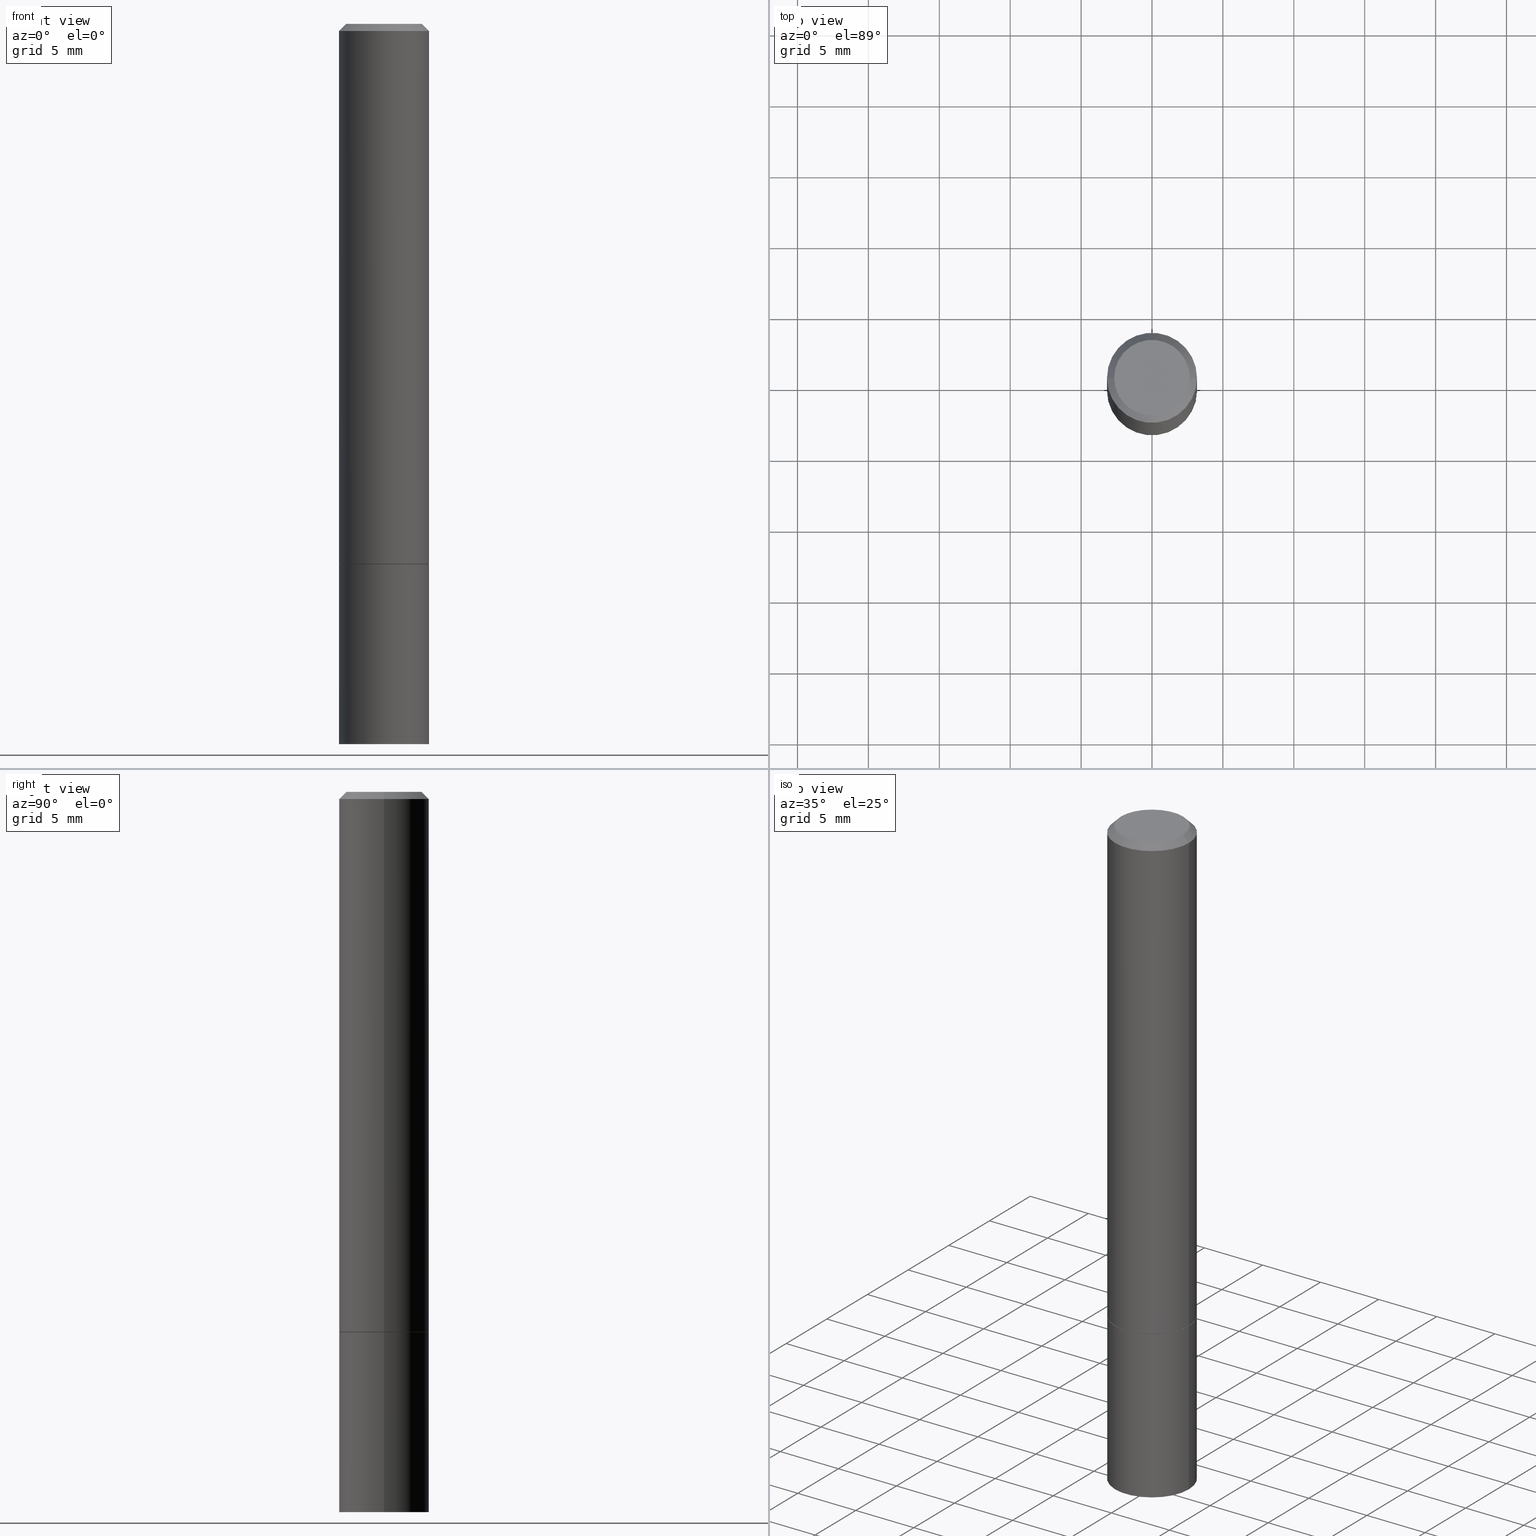
[diagram: canonical four-view strip — front | top / right | iso, engineering-drawing reading convention]
A machine part, canonical four-view strip (front | top / right | iso — engineering-drawing reading convention). The complete STEP part file that produces these views, byte-faithful:
ISO-10303-21;
HEADER;
FILE_DESCRIPTION (( 'STEP AP203' ),
    '1' );
FILE_NAME ('31713.STEP',
    '2024-02-27T13:15:38',
    ( '' ),
    ( '' ),
    'SwSTEP 2.0',
    'SolidWorks 2023',
    '' );
FILE_SCHEMA (( 'CONFIG_CONTROL_DESIGN' ));
ENDSEC;

DATA;
#1 = ORGANIZATION ( 'UNSPECIFIED', 'UNSPECIFIED', '' ) ;
#2 = DIRECTION ( 'NONE',  ( 0.000000000000000000, 0.000000000000000000, 1.000000000000000000 ) ) ;
#3 = CARTESIAN_POINT ( 'NONE',  ( -0.1249999999999998335, 8.030407079339191532E-16, -0.02000000000000002470 ) ) ;
#4 = PRODUCT_DEFINITION ( 'UNKNOWN', '', #302, #315 ) ;
#5 = DIRECTION ( 'NONE',  ( 1.000000000000000000, -6.982962677686270655E-15, 0.000000000000000000 ) ) ;
#6 = AXIS2_PLACEMENT_3D ( 'NONE', #290, #231, #134 ) ;
#7 = DIRECTION ( 'NONE',  ( -2.445468806185136597E-29, 3.491481338843145583E-15, 1.000000000000000000 ) ) ;
#8 =( LENGTH_UNIT ( ) NAMED_UNIT ( * ) SI_UNIT ( $, .METRE. ) );
#9 = LINE ( 'NONE', #201, #131 ) ;
#10 = VECTOR ( 'NONE', #197, 39.37007874015748143 ) ;
#11 = DIRECTION ( 'NONE',  ( -2.445468806185136597E-29, 3.491481338843145583E-15, 1.000000000000000000 ) ) ;
#12 = FACE_OUTER_BOUND ( 'NONE', #40, .T. ) ;
#13 = PLANE ( 'NONE',  #358 ) ;
#14 = ORIENTED_EDGE ( 'NONE', *, *, #109, .F. ) ;
#15 = ORIENTED_EDGE ( 'NONE', *, *, #190, .T. ) ;
#16 = EDGE_LOOP ( 'NONE', ( #34, #14 ) ) ;
#17 = DIRECTION ( 'NONE',  ( -2.445468806185136597E-29, 3.491481338843145583E-15, 1.000000000000000000 ) ) ;
#18 = ADVANCED_FACE ( 'NONE', ( #12 ), #255, .T. ) ;
#19 = ORIENTED_EDGE ( 'NONE', *, *, #233, .F. ) ;
#20 = CARTESIAN_POINT ( 'NONE',  ( 4.890937612370279289E-31, -6.982962677686299005E-17, -0.02000000000000002470 ) ) ;
#21 = EDGE_CURVE ( 'NONE', #268, #236, #267, .T. ) ;
#22 = PERSON_AND_ORGANIZATION ( #147, #1 ) ;
#23 = EDGE_CURVE ( 'NONE', #264, #149, #308, .T. ) ;
#24 = ADVANCED_FACE ( 'NONE', ( #133 ), #283, .F. ) ;
#25 = LOCAL_TIME ( 8, 15, 38.00000000000000000, #42 ) ;
#26 = FACE_OUTER_BOUND ( 'NONE', #60, .T. ) ;
#27 = EDGE_CURVE ( 'NONE', #236, #264, #181, .T. ) ;
#28 = VECTOR ( 'NONE', #55, 39.37007874015748143 ) ;
#29 = LENGTH_MEASURE_WITH_UNIT ( LENGTH_MEASURE( 0.02539999999999999897 ), #8 );
#30 = LINE ( 'NONE', #253, #343 ) ;
#31 = DIRECTION ( 'NONE',  ( 1.000000000000000000, -6.982962677686266711E-15, 0.000000000000000000 ) ) ;
#32 = CARTESIAN_POINT ( 'NONE',  ( 0.1250000000000000000, -7.855833012397075293E-15, -2.000000000000000000 ) ) ;
#33 = ADVANCED_FACE ( 'NONE', ( #237 ), #258, .T. ) ;
#34 = ORIENTED_EDGE ( 'NONE', *, *, #250, .F. ) ;
#35 = AXIS2_PLACEMENT_3D ( 'NONE', #338, #123, #341 ) ;
#36 = ORIENTED_EDGE ( 'NONE', *, *, #190, .F. ) ;
#37 = CARTESIAN_POINT ( 'NONE',  ( -0.1249999999999999167, 8.881784197001246407E-16, -6.148668862818628023E-30 ) ) ;
#38 = ORIENTED_EDGE ( 'NONE', *, *, #252, .F. ) ;
#39 = CARTESIAN_POINT ( 'NONE',  ( 8.728703347108198236E-16, 0.1249999999999947542, -1.500000000000000444 ) ) ;
#40 = EDGE_LOOP ( 'NONE', ( #183, #328, #364, #87 ) ) ;
#41 = DIRECTION ( 'NONE',  ( 1.000000000000000000, -6.982962677686270655E-15, 0.000000000000000000 ) ) ;
#42 = COORDINATED_UNIVERSAL_TIME_OFFSET ( 5, 0, .BEHIND. ) ;
#43 = DIRECTION ( 'NONE',  ( 1.000000000000000000, -6.982962677686270655E-15, 0.000000000000000000 ) ) ;
#44 = CARTESIAN_POINT ( 'NONE',  ( 3.665757740471518732E-29, -5.233730526925875170E-15, -1.498999999999999666 ) ) ;
#45 = EDGE_CURVE ( 'NONE', #299, #268, #291, .T. ) ;
#46 = DIRECTION ( 'NONE',  ( 2.438088387897960049E-29, -3.491481338843145188E-15, -1.000000000000000000 ) ) ;
#47 = CARTESIAN_POINT ( 'NONE',  ( -0.1250000000000000000, -5.221913923275378650E-15, -2.000000000000000000 ) ) ;
#48 = PERSON_AND_ORGANIZATION ( #147, #1 ) ;
#49 = AXIS2_PLACEMENT_3D ( 'NONE', #281, #7, #228 ) ;
#50 = CIRCLE ( 'NONE', #49, 0.1049999999999998573 ) ;
#51 = PRODUCT ( '31713', '31713', '', ( #339 ) ) ;
#52 = DIRECTION ( 'NONE',  ( -2.445468806185136597E-29, 3.491481338843145583E-15, 1.000000000000000000 ) ) ;
#53 = DIRECTION ( 'NONE',  ( 1.000000000000000000, -6.982962677686270655E-15, 0.000000000000000000 ) ) ;
#54 = LOCAL_TIME ( 8, 15, 38.00000000000000000, #205 ) ;
#55 = DIRECTION ( 'NONE',  ( -0.7071067811864267805, 7.493145998869918709E-15, 0.7071067811866682540 ) ) ;
#56 = COORDINATED_UNIVERSAL_TIME_OFFSET ( 5, 0, .BEHIND. ) ;
#57 = CARTESIAN_POINT ( 'NONE',  ( 0.000000000000000000, 0.000000000000000000, 0.000000000000000000 ) ) ;
#58 = CIRCLE ( 'NONE', #6, 0.1250000000000000000 ) ;
#59 = CARTESIAN_POINT ( 'NONE',  ( 0.1049999999999998573, -8.238720831321564811E-16, 5.444276250344142358E-30 ) ) ;
#60 = EDGE_LOOP ( 'NONE', ( #68, #211, #235, #120 ) ) ;
#61 = CALENDAR_DATE ( 2024, 27, 2 ) ;
#62 = ORIENTED_EDGE ( 'NONE', *, *, #157, .T. ) ;
#63 = AXIS2_PLACEMENT_3D ( 'NONE', #168, #314, #318 ) ;
#64 = CLOSED_SHELL ( 'NONE', ( #244, #282, #24, #221 ) ) ;
#65 = AXIS2_PLACEMENT_3D ( 'NONE', #215, #184, #41 ) ;
#66 = VERTEX_POINT ( 'NONE', #59 ) ;
#67 = ORIENTED_EDGE ( 'NONE', *, *, #250, .T. ) ;
#68 = ORIENTED_EDGE ( 'NONE', *, *, #175, .T. ) ;
#69 = CARTESIAN_POINT ( 'NONE',  ( 0.1250000000000000000, -6.110092342975501516E-15, -1.499999999999999778 ) ) ;
#70 = AXIS2_PLACEMENT_3D ( 'NONE', #335, #129, #5 ) ;
#71 = DIRECTION ( 'NONE',  ( 1.000000000000000000, -6.982962677686265922E-15, 4.876176775795935793E-29 ) ) ;
#72 = ADVANCED_FACE ( 'NONE', ( #292 ), #13, .F. ) ;
#73 = SECURITY_CLASSIFICATION_LEVEL ( 'unclassified' ) ;
#74 = APPLICATION_CONTEXT ( 'configuration controlled 3d designs of mechanical parts and assemblies' ) ;
#75 = APPROVAL_ROLE ( '' ) ;
#76 = MANIFOLD_SOLID_BREP ( 'Body-Move/Copy2[1]', #64 ) ;
#77 = AXIS2_PLACEMENT_3D ( 'NONE', #287, #11, #143 ) ;
#78 = CARTESIAN_POINT ( 'NONE',  ( 3.668203209277704335E-29, -5.237222008264717388E-15, -1.499999999999999778 ) ) ;
#79 = CC_DESIGN_PERSON_AND_ORGANIZATION_ASSIGNMENT ( #224, #316, ( #4 ) ) ;
#80 = DIRECTION ( 'NONE',  ( 1.000000000000000000, -6.982962677686270655E-15, 0.000000000000000000 ) ) ;
#81 = DIRECTION ( 'NONE',  ( 1.000000000000000000, -6.982962677686266711E-15, 4.876176775795935793E-29 ) ) ;
#82 = EDGE_LOOP ( 'NONE', ( #19, #179, #62, #152 ) ) ;
#83 = VECTOR ( 'NONE', #95, 39.37007874015748143 ) ;
#84 = UNCERTAINTY_MEASURE_WITH_UNIT (LENGTH_MEASURE( 1.000000000000000082E-05 ), #346, 'distance_accuracy_value', 'NONE');
#85 = CC_DESIGN_APPROVAL ( #286, ( #336 ) ) ;
#86 = EDGE_LOOP ( 'NONE', ( #331, #262 ) ) ;
#87 = ORIENTED_EDGE ( 'NONE', *, *, #88, .F. ) ;
#88 = EDGE_CURVE ( 'NONE', #236, #268, #317, .T. ) ;
#89 = VERTEX_POINT ( 'NONE', #276 ) ;
#90 = VECTOR ( 'NONE', #169, 39.37007874015748143 ) ;
#91 = CALENDAR_DATE ( 2024, 27, 2 ) ;
#92 = DIRECTION ( 'NONE',  ( -1.000000000000000000, 6.982962677686266711E-15, 0.000000000000000000 ) ) ;
#93 = CIRCLE ( 'NONE', #138, 0.1250000000000000000 ) ;
#94 = ORIENTED_EDGE ( 'NONE', *, *, #109, .T. ) ;
#95 = DIRECTION ( 'NONE',  ( -0.7071067811865466846, 2.468850131082247989E-15, -0.7071067811865483499 ) ) ;
#96 = APPROVAL_ROLE ( '' ) ;
#97 = ORIENTED_EDGE ( 'NONE', *, *, #99, .F. ) ;
#98 = CARTESIAN_POINT ( 'NONE',  ( -0.1249999999999998335, 8.030407079339191532E-16, -0.02000000000000002470 ) ) ;
#99 = EDGE_CURVE ( 'NONE', #268, #149, #127, .T. ) ;
#100 = COORDINATED_UNIVERSAL_TIME_OFFSET ( 5, 0, .BEHIND. ) ;
#101 = AXIS2_PLACEMENT_3D ( 'NONE', #44, #52, #80 ) ;
#102 = AXIS2_PLACEMENT_3D ( 'NONE', #189, #2, #225 ) ;
#103 = CARTESIAN_POINT ( 'NONE',  ( 0.000000000000000000, 0.000000000000000000, 0.000000000000000000 ) ) ;
#104 = FACE_OUTER_BOUND ( 'NONE', #82, .T. ) ;
#105 = ORIENTED_EDGE ( 'NONE', *, *, #332, .T. ) ;
#106 = ADVANCED_FACE ( 'NONE', ( #199 ), #232, .T. ) ;
#107 = CARTESIAN_POINT ( 'NONE',  ( -0.1239999999999999991, -4.356149015922194741E-15, -1.500000000000000222 ) ) ;
#108 = CARTESIAN_POINT ( 'NONE',  ( 0.1250000000000000000, -8.728703347107833388E-16, 6.095220969744919741E-30 ) ) ;
#109 = EDGE_CURVE ( 'NONE', #113, #238, #93, .T. ) ;
#110 = FACE_OUTER_BOUND ( 'NONE', #182, .T. ) ;
#111 = AXIS2_PLACEMENT_3D ( 'NONE', #20, #153, #121 ) ;
#112 = AXIS2_PLACEMENT_3D ( 'NONE', #185, #357, #301 ) ;
#113 = VERTEX_POINT ( 'NONE', #47 ) ;
#114 = ADVANCED_FACE ( 'NONE', ( #156 ), #342, .F. ) ;
#115 = ORIENTED_EDGE ( 'NONE', *, *, #157, .F. ) ;
#116 = CARTESIAN_POINT ( 'NONE',  ( -0.1250000000000000000, -1.763601657151241635E-15, -1.498999999999999666 ) ) ;
#117 = VERTEX_POINT ( 'NONE', #269 ) ;
#118 = CARTESIAN_POINT ( 'NONE',  ( 4.890937612370279289E-31, -6.982962677686299005E-17, -0.02000000000000002470 ) ) ;
#119 = EDGE_LOOP ( 'NONE', ( #38, #146, #15, #115 ) ) ;
#120 = ORIENTED_EDGE ( 'NONE', *, *, #45, .F. ) ;
#121 = DIRECTION ( 'NONE',  ( 1.000000000000000000, -6.982962677686266711E-15, 0.000000000000000000 ) ) ;
#122 = PERSON_AND_ORGANIZATION ( #147, #1 ) ;
#123 = DIRECTION ( 'NONE',  ( 2.445468806185136597E-29, -3.491481338843145583E-15, -1.000000000000000000 ) ) ;
#124 = CARTESIAN_POINT ( 'NONE',  ( 4.890937612370279289E-31, -6.982962677686299005E-17, -0.02000000000000002470 ) ) ;
#125 = APPROVAL_STATUS ( 'not_yet_approved' ) ;
#126 = CIRCLE ( 'NONE', #212, 0.1250000000000000000 ) ;
#127 = LINE ( 'NONE', #285, #90 ) ;
#128 = PERSON_AND_ORGANIZATION_ROLE ( 'design_owner' ) ;
#129 = DIRECTION ( 'NONE',  ( -2.445468806185136597E-29, 3.491481338843145583E-15, 1.000000000000000000 ) ) ;
#130 = CALENDAR_DATE ( 2024, 27, 2 ) ;
#131 = VECTOR ( 'NONE', #324, 39.37007874015748143 ) ;
#132 =( GEOMETRIC_REPRESENTATION_CONTEXT ( 3 ) GLOBAL_UNCERTAINTY_ASSIGNED_CONTEXT ( ( #84 ) ) GLOBAL_UNIT_ASSIGNED_CONTEXT ( ( #346, #209, #247 ) ) REPRESENTATION_CONTEXT ( 'NONE', 'WORKASPACE' ) );
#133 = FACE_OUTER_BOUND ( 'NONE', #293, .T. ) ;
#134 = DIRECTION ( 'NONE',  ( 1.000000000000000000, -6.982962677686270655E-15, 0.000000000000000000 ) ) ;
#135 = DIRECTION ( 'NONE',  ( -2.445468806185136597E-29, 3.491481338843145583E-15, 1.000000000000000000 ) ) ;
#136 = CYLINDRICAL_SURFACE ( 'NONE', #210, 0.1249999999999999167 ) ;
#137 = DIRECTION ( 'NONE',  ( -2.438088387897960049E-29, 3.491481338843145188E-15, 1.000000000000000000 ) ) ;
#138 = AXIS2_PLACEMENT_3D ( 'NONE', #219, #272, #222 ) ;
#139 = CARTESIAN_POINT ( 'NONE',  ( 4.890937612370273194E-29, -6.982962677686291165E-15, -2.000000000000000000 ) ) ;
#140 = CARTESIAN_POINT ( 'NONE',  ( -0.1239999999999999991, -4.350850561573971550E-15, -1.500000000000000222 ) ) ;
#141 = APPROVAL_DATE_TIME ( #177, #286 ) ;
#142 = DIRECTION ( 'NONE',  ( 0.7071067811864267805, -2.468850131080992517E-15, 0.7071067811866682540 ) ) ;
#143 = DIRECTION ( 'NONE',  ( 1.000000000000000000, -6.982962677686266711E-15, 4.876176775795935793E-29 ) ) ;
#144 = DATE_TIME_ROLE ( 'classification_date' ) ;
#145 = ORIENTED_EDGE ( 'NONE', *, *, #252, .T. ) ;
#146 = ORIENTED_EDGE ( 'NONE', *, *, #233, .T. ) ;
#147 = PERSON ( 'UNSPECIFIED', 'UNSPECIFIED', 'UNSPECIFIED', ('UNSPECIFIED'), ('UNSPECIFIED'), ('UNSPECIFIED') ) ;
#148 = EDGE_LOOP ( 'NONE', ( #344, #145 ) ) ;
#149 = VERTEX_POINT ( 'NONE', #155 ) ;
#150 = CONICAL_SURFACE ( 'NONE', #35, 0.1249999999999998335, 0.7853981633974471688 ) ;
#151 = DATE_AND_TIME ( #91, #25 ) ;
#152 = ORIENTED_EDGE ( 'NONE', *, *, #23, .T. ) ;
#153 = DIRECTION ( 'NONE',  ( -2.445468806185136597E-29, 3.491481338843145583E-15, 1.000000000000000000 ) ) ;
#154 = APPROVAL_STATUS ( 'not_yet_approved' ) ;
#155 = CARTESIAN_POINT ( 'NONE',  ( 0.1249999999999998335, -9.273918764983031658E-16, -0.02000000000000002470 ) ) ;
#156 = FACE_OUTER_BOUND ( 'NONE', #86, .T. ) ;
#157 = EDGE_CURVE ( 'NONE', #89, #264, #362, .T. ) ;
#158 = PRODUCT_DEFINITION_SHAPE ( 'NONE', 'NONE',  #4 ) ;
#159 = APPLICATION_PROTOCOL_DEFINITION ( 'international standard', 'config_control_design', 1994, #74 ) ;
#160 = LOCAL_TIME ( 8, 15, 38.00000000000000000, #100 ) ;
#161 = APPLICATION_CONTEXT ( 'configuration controlled 3d designs of mechanical parts and assemblies' ) ;
#162 = AXIS2_PLACEMENT_3D ( 'NONE', #270, #307, #275 ) ;
#163 = CC_DESIGN_PERSON_AND_ORGANIZATION_ASSIGNMENT ( #48, #128, ( #51 ) ) ;
#164 = APPROVAL_DATE_TIME ( #309, #356 ) ;
#165 = CARTESIAN_POINT ( 'NONE',  ( 8.728703347108321496E-16, 0.1249999999999930195, -2.000000000000000444 ) ) ;
#166 = DIRECTION ( 'NONE',  ( 2.438088387897960049E-29, -3.491481338843145188E-15, -1.000000000000000000 ) ) ;
#167 = CC_DESIGN_DATE_AND_TIME_ASSIGNMENT ( #295, #312, ( #4 ) ) ;
#168 = CARTESIAN_POINT ( 'NONE',  ( 3.668203209277704895E-29, -5.237222008264718177E-15, -1.500000000000000222 ) ) ;
#169 = DIRECTION ( 'NONE',  ( -2.445468806185136877E-29, 3.491481338843145188E-15, 1.000000000000000000 ) ) ;
#170 = EDGE_LOOP ( 'NONE', ( #214, #94, #218, #207 ) ) ;
#171 = APPROVAL_PERSON_ORGANIZATION ( #188, #356, #75 ) ;
#172 = FACE_OUTER_BOUND ( 'NONE', #263, .T. ) ;
#173 = DIRECTION ( 'NONE',  ( -2.445468806185136597E-29, 3.491481338843145583E-15, 1.000000000000000000 ) ) ;
#174 = DIRECTION ( 'NONE',  ( -2.445468806185136877E-29, 3.491481338843145188E-15, 1.000000000000000000 ) ) ;
#175 = EDGE_CURVE ( 'NONE', #299, #355, #178, .T. ) ;
#176 = VERTEX_POINT ( 'NONE', #69 ) ;
#177 = DATE_AND_TIME ( #61, #54 ) ;
#178 = CIRCLE ( 'NONE', #65, 0.1239999999999999991 ) ;
#179 = ORIENTED_EDGE ( 'NONE', *, *, #323, .F. ) ;
#180 = CC_DESIGN_SECURITY_CLASSIFICATION ( #336, ( #302 ) ) ;
#181 = LINE ( 'NONE', #37, #234 ) ;
#182 = EDGE_LOOP ( 'NONE', ( #360, #242, #251, #240 ) ) ;
#183 = ORIENTED_EDGE ( 'NONE', *, *, #229, .F. ) ;
#184 = DIRECTION ( 'NONE',  ( -2.445468806185136597E-29, 3.491481338843145583E-15, 1.000000000000000000 ) ) ;
#185 = CARTESIAN_POINT ( 'NONE',  ( 3.668203209277704895E-29, -5.237222008264718177E-15, -1.500000000000000222 ) ) ;
#186 = AXIS2_PLACEMENT_3D ( 'NONE', #266, #17, #241 ) ;
#187 = PERSON_AND_ORGANIZATION_ROLE ( 'classification_officer' ) ;
#188 = PERSON_AND_ORGANIZATION ( #147, #1 ) ;
#189 = CARTESIAN_POINT ( 'NONE',  ( 0.000000000000000000, 0.000000000000000000, 0.000000000000000000 ) ) ;
#190 = EDGE_CURVE ( 'NONE', #149, #264, #230, .T. ) ;
#191 = DIRECTION ( 'NONE',  ( -2.445468806185136597E-29, 3.491481338843145583E-15, 1.000000000000000000 ) ) ;
#192 = CC_DESIGN_DATE_AND_TIME_ASSIGNMENT ( #321, #144, ( #336 ) ) ;
#193 = FACE_OUTER_BOUND ( 'NONE', #16, .T. ) ;
#194 = APPROVAL_PERSON_ORGANIZATION ( #320, #265, #96 ) ;
#195 = CARTESIAN_POINT ( 'NONE',  ( 0.1250000000000000000, -6.106600861636658508E-15, -1.498999999999999666 ) ) ;
#196 = LINE ( 'NONE', #107, #28 ) ;
#197 = DIRECTION ( 'NONE',  ( -2.445468806185136877E-29, 3.491481338843145188E-15, 1.000000000000000000 ) ) ;
#198 = AXIS2_PLACEMENT_3D ( 'NONE', #254, #137, #71 ) ;
#199 = FACE_OUTER_BOUND ( 'NONE', #298, .T. ) ;
#200 = LOCAL_TIME ( 8, 15, 38.00000000000000000, #56 ) ;
#201 = CARTESIAN_POINT ( 'NONE',  ( 0.1249999999999998335, -9.273918764983031658E-16, -0.02000000000000002470 ) ) ;
#202 = MANIFOLD_SOLID_BREP ( 'Body-Move/Copy2[2]', #305 ) ;
#203 = DIRECTION ( 'NONE',  ( 2.438088387897960049E-29, -3.491481338843145188E-15, -1.000000000000000000 ) ) ;
#204 = ORIENTED_EDGE ( 'NONE', *, *, #351, .T. ) ;
#205 = COORDINATED_UNIVERSAL_TIME_OFFSET ( 5, 0, .BEHIND. ) ;
#206 = DIRECTION ( 'NONE',  ( -1.000000000000000000, 6.982962677686265922E-15, -4.876176775795935793E-29 ) ) ;
#207 = ORIENTED_EDGE ( 'NONE', *, *, #351, .F. ) ;
#208 = APPROVAL_ROLE ( '' ) ;
#209 =( NAMED_UNIT ( * ) PLANE_ANGLE_UNIT ( ) SI_UNIT ( $, .RADIAN. ) );
#210 = AXIS2_PLACEMENT_3D ( 'NONE', #57, #173, #256 ) ;
#211 = ORIENTED_EDGE ( 'NONE', *, *, #229, .T. ) ;
#212 = AXIS2_PLACEMENT_3D ( 'NONE', #78, #313, #53 ) ;
#213 = PERSON_AND_ORGANIZATION_ROLE ( 'design_supplier' ) ;
#214 = ORIENTED_EDGE ( 'NONE', *, *, #332, .F. ) ;
#215 = CARTESIAN_POINT ( 'NONE',  ( 3.668203209277704895E-29, -5.237222008264718177E-15, -1.500000000000000222 ) ) ;
#216 = CARTESIAN_POINT ( 'NONE',  ( 0.1239999999999999991, -6.103109380297816290E-15, -1.500000000000000222 ) ) ;
#217 = CC_DESIGN_PERSON_AND_ORGANIZATION_ASSIGNMENT ( #334, #187, ( #336 ) ) ;
#218 = ORIENTED_EDGE ( 'NONE', *, *, #349, .T. ) ;
#219 = CARTESIAN_POINT ( 'NONE',  ( 4.890937612370273194E-29, -6.982962677686291165E-15, -2.000000000000000000 ) ) ;
#220 = PERSON_AND_ORGANIZATION_ROLE ( 'creator' ) ;
#221 = ADVANCED_FACE ( 'NONE', ( #304 ), #271, .T. ) ;
#222 = DIRECTION ( 'NONE',  ( 1.000000000000000000, -6.982962677686270655E-15, 0.000000000000000000 ) ) ;
#223 = CC_DESIGN_APPROVAL ( #356, ( #4 ) ) ;
#224 = PERSON_AND_ORGANIZATION ( #147, #1 ) ;
#225 = DIRECTION ( 'NONE',  ( 1.000000000000000000, 0.000000000000000000, 0.000000000000000000 ) ) ;
#226 = DIRECTION ( 'NONE',  ( 1.000000000000000000, -6.982962677686270655E-15, 0.000000000000000000 ) ) ;
#227 = CARTESIAN_POINT ( 'NONE',  ( 0.1239999999999999991, -6.103109380297816290E-15, -1.500000000000000222 ) ) ;
#228 = DIRECTION ( 'NONE',  ( 1.000000000000000000, -6.982962677686265922E-15, 4.876176775795935232E-29 ) ) ;
#229 = EDGE_CURVE ( 'NONE', #355, #236, #196, .T. ) ;
#230 = CIRCLE ( 'NONE', #111, 0.1249999999999998335 ) ;
#231 = DIRECTION ( 'NONE',  ( -2.445468806185136597E-29, 3.491481338843145583E-15, 1.000000000000000000 ) ) ;
#232 = CYLINDRICAL_SURFACE ( 'NONE', #186, 0.1249999999999999167 ) ;
#233 = EDGE_CURVE ( 'NONE', #66, #149, #9, .T. ) ;
#234 = VECTOR ( 'NONE', #363, 39.37007874015748143 ) ;
#235 = ORIENTED_EDGE ( 'NONE', *, *, #21, .F. ) ;
#236 = VERTEX_POINT ( 'NONE', #116 ) ;
#237 = FACE_OUTER_BOUND ( 'NONE', #119, .T. ) ;
#238 = VERTEX_POINT ( 'NONE', #32 ) ;
#239 = AXIS2_PLACEMENT_3D ( 'NONE', #39, #203, #206 ) ;
#240 = ORIENTED_EDGE ( 'NONE', *, *, #23, .F. ) ;
#241 = DIRECTION ( 'NONE',  ( 1.000000000000000000, -6.982962677686266711E-15, 4.876176775795935793E-29 ) ) ;
#242 = ORIENTED_EDGE ( 'NONE', *, *, #88, .T. ) ;
#243 = APPROVAL_DATE_TIME ( #151, #265 ) ;
#244 = ADVANCED_FACE ( 'NONE', ( #172 ), #261, .T. ) ;
#245 = DIRECTION ( 'NONE',  ( -1.000000000000000000, 6.982962677686265922E-15, -4.876176775795935793E-29 ) ) ;
#246 = CONICAL_SURFACE ( 'NONE', #70, 0.1239999999999999991, 0.7853981633972775267 ) ;
#247 =( NAMED_UNIT ( * ) SI_UNIT ( $, .STERADIAN. ) SOLID_ANGLE_UNIT ( ) );
#248 = PLANE ( 'NONE',  #310 ) ;
#249 = AXIS2_PLACEMENT_3D ( 'NONE', #103, #135, #81 ) ;
#250 = EDGE_CURVE ( 'NONE', #238, #113, #277, .T. ) ;
#251 = ORIENTED_EDGE ( 'NONE', *, *, #99, .T. ) ;
#252 = EDGE_CURVE ( 'NONE', #66, #89, #288, .T. ) ;
#253 = CARTESIAN_POINT ( 'NONE',  ( -0.1250000000000000000, 8.881784197001252323E-16, -6.148668862818632227E-30 ) ) ;
#254 = CARTESIAN_POINT ( 'NONE',  ( 3.668203209277704335E-29, -5.237222008264717388E-15, -1.499999999999999778 ) ) ;
#255 = CONICAL_SURFACE ( 'NONE', #112, 0.1239999999999999991, 0.7853981633972775267 ) ;
#256 = DIRECTION ( 'NONE',  ( 1.000000000000000000, -6.982962677686266711E-15, 4.876176775795935793E-29 ) ) ;
#257 = DIRECTION ( 'NONE',  ( -2.445468806185136597E-29, 3.491481338843145583E-15, 1.000000000000000000 ) ) ;
#258 = CONICAL_SURFACE ( 'NONE', #327, 0.1249999999999998335, 0.7853981633974471688 ) ;
#259 = DIRECTION ( 'NONE',  ( -2.445468806185136597E-29, 3.491481338843145583E-15, 1.000000000000000000 ) ) ;
#260 = LINE ( 'NONE', #108, #10 ) ;
#261 = CYLINDRICAL_SURFACE ( 'NONE', #77, 0.1250000000000000000 ) ;
#262 = ORIENTED_EDGE ( 'NONE', *, *, #326, .F. ) ;
#263 = EDGE_LOOP ( 'NONE', ( #67, #105, #333, #353 ) ) ;
#264 = VERTEX_POINT ( 'NONE', #3 ) ;
#265 = APPROVAL ( #125, 'UNSPECIFIED' ) ;
#266 = CARTESIAN_POINT ( 'NONE',  ( 0.000000000000000000, 0.000000000000000000, 0.000000000000000000 ) ) ;
#267 = CIRCLE ( 'NONE', #101, 0.1250000000000000000 ) ;
#268 = VERTEX_POINT ( 'NONE', #195 ) ;
#269 = CARTESIAN_POINT ( 'NONE',  ( -0.1250000000000000000, -5.221913923275378650E-15, -1.499999999999999778 ) ) ;
#270 = CARTESIAN_POINT ( 'NONE',  ( 0.000000000000000000, 0.000000000000000000, 0.000000000000000000 ) ) ;
#271 = CYLINDRICAL_SURFACE ( 'NONE', #249, 0.1250000000000000000 ) ;
#272 = DIRECTION ( 'NONE',  ( -2.445468806185136597E-29, 3.491481338843145583E-15, 1.000000000000000000 ) ) ;
#273 = CALENDAR_DATE ( 2024, 27, 2 ) ;
#274 = PRODUCT_RELATED_PRODUCT_CATEGORY ( 'detail', '', ( #51 ) ) ;
#275 = DIRECTION ( 'NONE',  ( 1.000000000000000000, -6.982962677686265922E-15, 4.876176775795935232E-29 ) ) ;
#276 = CARTESIAN_POINT ( 'NONE',  ( -0.1049999999999998573, 7.681258945454880957E-16, -5.249639473182158869E-30 ) ) ;
#277 = CIRCLE ( 'NONE', #352, 0.1250000000000000000 ) ;
#278 = COORDINATED_UNIVERSAL_TIME_OFFSET ( 5, 0, .BEHIND. ) ;
#279 = DIRECTION ( 'NONE',  ( -1.000000000000000000, 6.982962677686265922E-15, -4.876176775795935793E-29 ) ) ;
#280 = ADVANCED_FACE ( 'NONE', ( #104 ), #150, .T. ) ;
#281 = CARTESIAN_POINT ( 'NONE',  ( 0.000000000000000000, 0.000000000000000000, 0.000000000000000000 ) ) ;
#282 = ADVANCED_FACE ( 'NONE', ( #193 ), #248, .T. ) ;
#283 = PLANE ( 'NONE',  #239 ) ;
#284 = DIMENSIONAL_EXPONENTS ( 1.000000000000000000, 0.000000000000000000, 0.000000000000000000, 0.000000000000000000, 0.000000000000000000, 0.000000000000000000, 0.000000000000000000 ) ;
#285 = CARTESIAN_POINT ( 'NONE',  ( 0.1249999999999999167, -8.728703347107827472E-16, 6.095220969744915537E-30 ) ) ;
#286 = APPROVAL ( #350, 'UNSPECIFIED' ) ;
#287 = CARTESIAN_POINT ( 'NONE',  ( 0.000000000000000000, 0.000000000000000000, 0.000000000000000000 ) ) ;
#288 = CIRCLE ( 'NONE', #162, 0.1049999999999998573 ) ;
#289 = ADVANCED_FACE ( 'NONE', ( #26 ), #246, .T. ) ;
#290 = CARTESIAN_POINT ( 'NONE',  ( 3.668203209277704335E-29, -5.237222008264717388E-15, -1.499999999999999778 ) ) ;
#291 = LINE ( 'NONE', #216, #329 ) ;
#292 = FACE_OUTER_BOUND ( 'NONE', #148, .T. ) ;
#293 = EDGE_LOOP ( 'NONE', ( #322, #204 ) ) ;
#294 = SHAPE_DEFINITION_REPRESENTATION ( #158, #303 ) ;
#295 = DATE_AND_TIME ( #130, #200 ) ;
#296 = AXIS2_PLACEMENT_3D ( 'NONE', #124, #257, #31 ) ;
#297 = CC_DESIGN_APPROVAL ( #265, ( #302 ) ) ;
#298 = EDGE_LOOP ( 'NONE', ( #325, #300, #36, #97 ) ) ;
#299 = VERTEX_POINT ( 'NONE', #227 ) ;
#300 = ORIENTED_EDGE ( 'NONE', *, *, #27, .T. ) ;
#301 = DIRECTION ( 'NONE',  ( 1.000000000000000000, -6.982962677686270655E-15, 0.000000000000000000 ) ) ;
#302 = PRODUCT_DEFINITION_FORMATION_WITH_SPECIFIED_SOURCE ( 'ANY', '', #51, .NOT_KNOWN. ) ;
#303 = ADVANCED_BREP_SHAPE_REPRESENTATION ( '31713', ( #76, #202, #102 ), #132 ) ;
#304 = FACE_OUTER_BOUND ( 'NONE', #170, .T. ) ;
#305 = CLOSED_SHELL ( 'NONE', ( #289, #106, #33, #280, #340, #18, #114, #72 ) ) ;
#306 = EDGE_CURVE ( 'NONE', #176, #117, #126, .T. ) ;
#307 = DIRECTION ( 'NONE',  ( -2.445468806185136597E-29, 3.491481338843145583E-15, 1.000000000000000000 ) ) ;
#308 = CIRCLE ( 'NONE', #296, 0.1249999999999998335 ) ;
#309 = DATE_AND_TIME ( #273, #348 ) ;
#310 = AXIS2_PLACEMENT_3D ( 'NONE', #165, #166, #279 ) ;
#311 = CC_DESIGN_PERSON_AND_ORGANIZATION_ASSIGNMENT ( #122, #213, ( #302 ) ) ;
#312 = DATE_TIME_ROLE ( 'creation_date' ) ;
#313 = DIRECTION ( 'NONE',  ( -2.445468806185136597E-29, 3.491481338843145583E-15, 1.000000000000000000 ) ) ;
#314 = DIRECTION ( 'NONE',  ( -2.445468806185136597E-29, 3.491481338843145583E-15, 1.000000000000000000 ) ) ;
#315 = DESIGN_CONTEXT ( 'detailed design', #74, 'design' ) ;
#316 = PERSON_AND_ORGANIZATION_ROLE ( 'creator' ) ;
#317 = CIRCLE ( 'NONE', #361, 0.1250000000000000000 ) ;
#318 = DIRECTION ( 'NONE',  ( 1.000000000000000000, -6.982962677686270655E-15, 0.000000000000000000 ) ) ;
#319 = APPROVAL_PERSON_ORGANIZATION ( #354, #286, #208 ) ;
#320 = PERSON_AND_ORGANIZATION ( #147, #1 ) ;
#321 = DATE_AND_TIME ( #330, #160 ) ;
#322 = ORIENTED_EDGE ( 'NONE', *, *, #306, .T. ) ;
#323 = EDGE_CURVE ( 'NONE', #89, #66, #50, .T. ) ;
#324 = DIRECTION ( 'NONE',  ( 0.7071067811865466846, -7.319954787623252890E-15, -0.7071067811865483499 ) ) ;
#325 = ORIENTED_EDGE ( 'NONE', *, *, #21, .T. ) ;
#326 = EDGE_CURVE ( 'NONE', #355, #299, #347, .T. ) ;
#327 = AXIS2_PLACEMENT_3D ( 'NONE', #118, #359, #92 ) ;
#328 = ORIENTED_EDGE ( 'NONE', *, *, #326, .T. ) ;
#329 = VECTOR ( 'NONE', #142, 39.37007874015748143 ) ;
#330 = CALENDAR_DATE ( 2024, 27, 2 ) ;
#331 = ORIENTED_EDGE ( 'NONE', *, *, #175, .F. ) ;
#332 = EDGE_CURVE ( 'NONE', #113, #117, #30, .T. ) ;
#333 = ORIENTED_EDGE ( 'NONE', *, *, #306, .F. ) ;
#334 = PERSON_AND_ORGANIZATION ( #147, #1 ) ;
#335 = CARTESIAN_POINT ( 'NONE',  ( 3.668203209277704895E-29, -5.237222008264718177E-15, -1.500000000000000222 ) ) ;
#336 = SECURITY_CLASSIFICATION ( '', '', #73 ) ;
#337 = CARTESIAN_POINT ( 'NONE',  ( 3.665757740471518732E-29, -5.233730526925875170E-15, -1.498999999999999666 ) ) ;
#338 = CARTESIAN_POINT ( 'NONE',  ( 4.890937612370279289E-31, -6.982962677686299005E-17, -0.02000000000000002470 ) ) ;
#339 = MECHANICAL_CONTEXT ( 'NONE', #161, 'mechanical' ) ;
#340 = ADVANCED_FACE ( 'NONE', ( #110 ), #136, .T. ) ;
#341 = DIRECTION ( 'NONE',  ( -1.000000000000000000, 6.982962677686266711E-15, 0.000000000000000000 ) ) ;
#342 = PLANE ( 'NONE',  #198 ) ;
#343 = VECTOR ( 'NONE', #174, 39.37007874015748143 ) ;
#344 = ORIENTED_EDGE ( 'NONE', *, *, #323, .T. ) ;
#345 = CC_DESIGN_PERSON_AND_ORGANIZATION_ASSIGNMENT ( #22, #220, ( #302 ) ) ;
#346 =( CONVERSION_BASED_UNIT ( 'INCH', #29 ) LENGTH_UNIT ( ) NAMED_UNIT ( #284 ) );
#347 = CIRCLE ( 'NONE', #63, 0.1239999999999999991 ) ;
#348 = LOCAL_TIME ( 8, 15, 38.00000000000000000, #278 ) ;
#349 = EDGE_CURVE ( 'NONE', #238, #176, #260, .T. ) ;
#350 = APPROVAL_STATUS ( 'not_yet_approved' ) ;
#351 = EDGE_CURVE ( 'NONE', #117, #176, #58, .T. ) ;
#352 = AXIS2_PLACEMENT_3D ( 'NONE', #139, #259, #43 ) ;
#353 = ORIENTED_EDGE ( 'NONE', *, *, #349, .F. ) ;
#354 = PERSON_AND_ORGANIZATION ( #147, #1 ) ;
#355 = VERTEX_POINT ( 'NONE', #140 ) ;
#356 = APPROVAL ( #154, 'UNSPECIFIED' ) ;
#357 = DIRECTION ( 'NONE',  ( -2.445468806185136597E-29, 3.491481338843145583E-15, 1.000000000000000000 ) ) ;
#358 = AXIS2_PLACEMENT_3D ( 'NONE', #366, #46, #245 ) ;
#359 = DIRECTION ( 'NONE',  ( 2.445468806185136597E-29, -3.491481338843145583E-15, -1.000000000000000000 ) ) ;
#360 = ORIENTED_EDGE ( 'NONE', *, *, #27, .F. ) ;
#361 = AXIS2_PLACEMENT_3D ( 'NONE', #337, #191, #226 ) ;
#362 = LINE ( 'NONE', #98, #83 ) ;
#363 = DIRECTION ( 'NONE',  ( -2.445468806185136877E-29, 3.491481338843145188E-15, 1.000000000000000000 ) ) ;
#364 = ORIENTED_EDGE ( 'NONE', *, *, #45, .T. ) ;
#365 = APPLICATION_PROTOCOL_DEFINITION ( 'international standard', 'config_control_design', 1994, #161 ) ;
#366 = CARTESIAN_POINT ( 'NONE',  ( 7.332110811570569396E-16, 0.1049999999999998573, -3.666055405785298010E-16 ) ) ;
ENDSEC;
END-ISO-10303-21;
